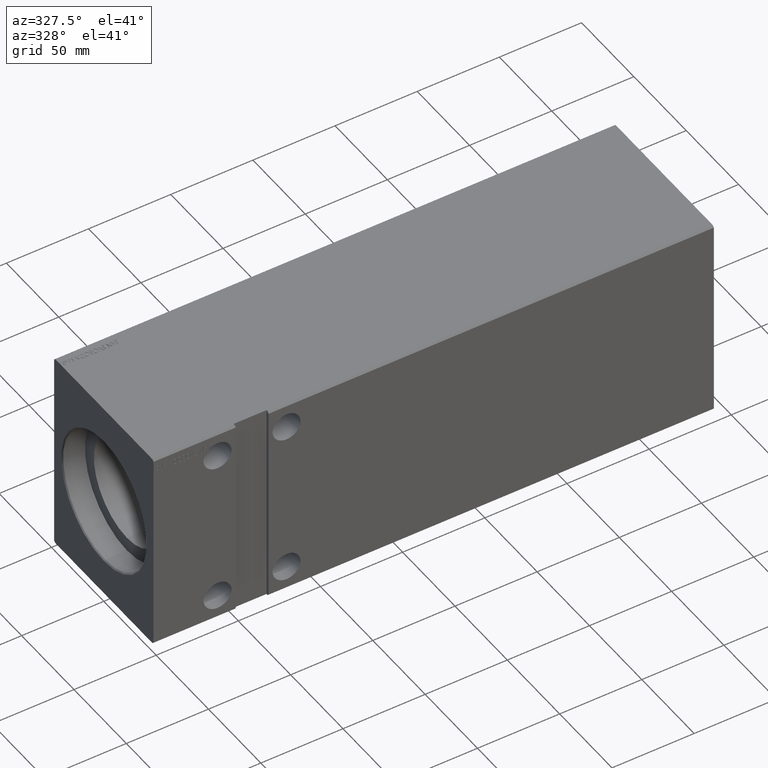
[diagram: clean part render]
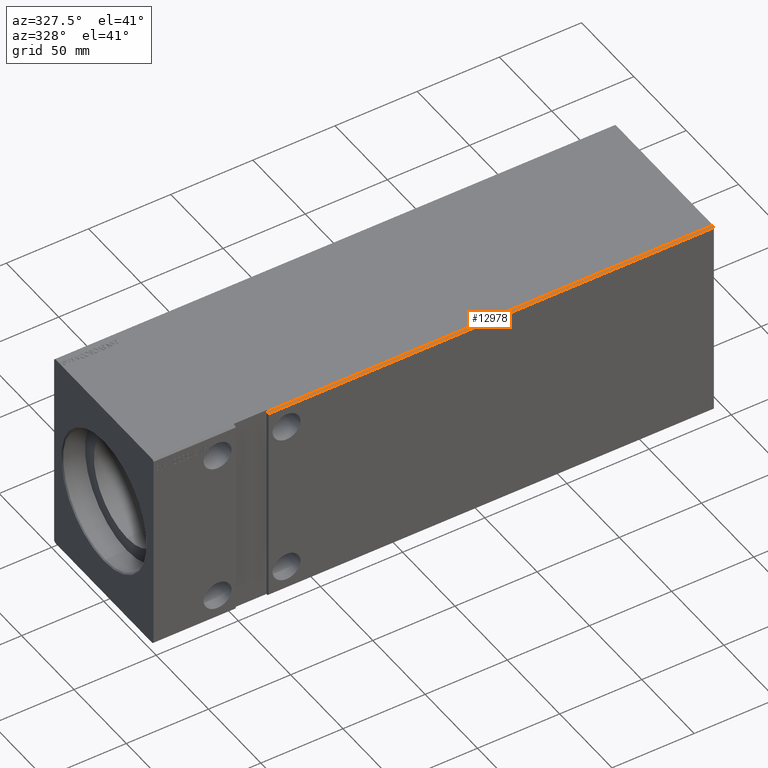
[diagram: same view with one face highlighted and labeled with its STEP entity id]
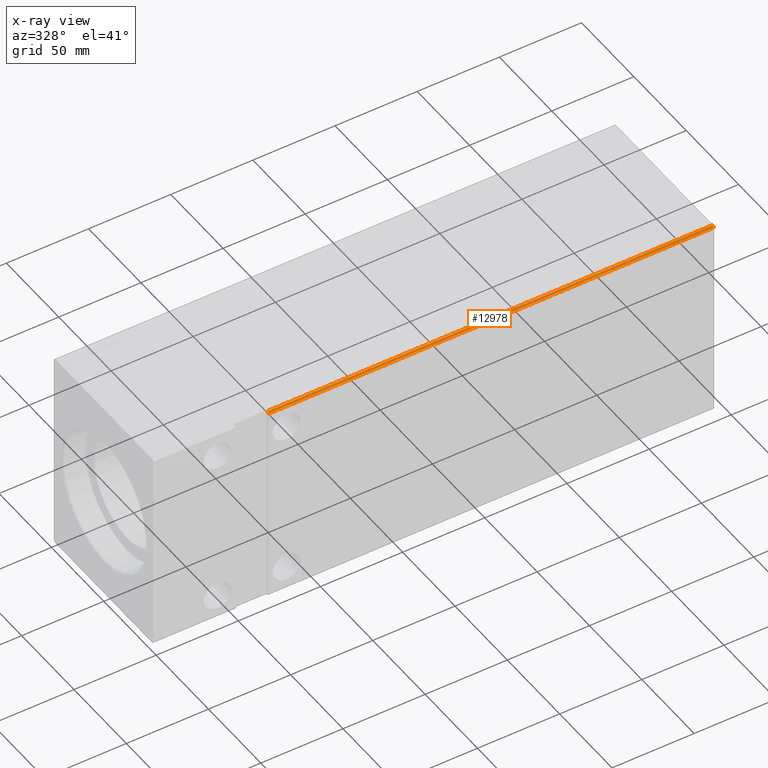
[diagram: x-ray of the same camera — body ghosted, the highlighted face saturated]
A machine part, auxiliary view. The second image highlights one B-rep face of the part: STEP entity #12978.
The next image is the same camera in x-ray: the body ghosted, the highlighted face saturated — about 0% of this face is hidden behind the body in this view.
In plain terms, the highlighted planar face has unit normal (0, 0.7071, -0.7071).
Its self-contained STEP definition (entity closure, byte-faithful):
#613 = VERTEX_POINT ( 'NONE', #9086 ) ;
#853 = CARTESIAN_POINT ( 'NONE',  ( 341.0000000000000000, -46.50000000000001421, 62.49999999999997868 ) ) ;
#1970 = DIRECTION ( 'NONE',  ( -1.000000000000000000, -0.000000000000000000, -0.000000000000000000 ) ) ;
#2274 = CARTESIAN_POINT ( 'NONE',  ( 341.0000000000000000, -46.50000000000001421, 62.49999999999997868 ) ) ;
#2486 = LINE ( 'NONE', #2274, #31617 ) ;
#3258 = VERTEX_POINT ( 'NONE', #21459 ) ;
#4742 = ORIENTED_EDGE ( 'NONE', *, *, #16785, .F. ) ;
#5160 = DIRECTION ( 'NONE',  ( 1.570092458683774920E-16, -0.7071067811865474617, -0.7071067811865474617 ) ) ;
#5746 = VERTEX_POINT ( 'NONE', #853 ) ;
#7849 = DIRECTION ( 'NONE',  ( 0.000000000000000000, 0.7071067811865475727, -0.7071067811865475727 ) ) ;
#9086 = CARTESIAN_POINT ( 'NONE',  ( 70.00000000000000000, -46.50000000000001421, 62.49999999999997868 ) ) ;
#10553 = VERTEX_POINT ( 'NONE', #37784 ) ;
#11047 = FACE_OUTER_BOUND ( 'NONE', #41617, .T. ) ;
#11096 = DIRECTION ( 'NONE',  ( 0.000000000000000000, -0.7071067811865474617, -0.7071067811865474617 ) ) ;
#12978 = ADVANCED_FACE ( 'NONE', ( #11047 ), #37068, .F. ) ;
#15294 = ORIENTED_EDGE ( 'NONE', *, *, #31391, .F. ) ;
#16785 = EDGE_CURVE ( 'NONE', #10553, #3258, #30769, .T. ) ;
#16863 = CARTESIAN_POINT ( 'NONE',  ( 341.0000000000000000, -46.50000000000001421, 62.49999999999997868 ) ) ;
#17319 = LINE ( 'NONE', #20955, #19344 ) ;
#18572 = AXIS2_PLACEMENT_3D ( 'NONE', #18658, #7849, #20872 ) ;
#18658 = CARTESIAN_POINT ( 'NONE',  ( 341.0000000000000000, -46.50000000000001421, 62.49999999999997868 ) ) ;
#19344 = VECTOR ( 'NONE', #5160, 1000.000000000000114 ) ;
#20872 = DIRECTION ( 'NONE',  ( 0.000000000000000000, 0.7071067811865474617, 0.7071067811865474617 ) ) ;
#20955 = CARTESIAN_POINT ( 'NONE',  ( 70.00000000000000000, -46.50000000000004263, 62.49999999999995026 ) ) ;
#21459 = CARTESIAN_POINT ( 'NONE',  ( 70.00000000000000000, -47.50000000000000000, 61.49999999999999289 ) ) ;
#22302 = DIRECTION ( 'NONE',  ( -1.000000000000000000, -0.000000000000000000, -0.000000000000000000 ) ) ;
#26282 = EDGE_CURVE ( 'NONE', #5746, #613, #2486, .T. ) ;
#28186 = CARTESIAN_POINT ( 'NONE',  ( 341.0000000000000000, -47.50000000000001421, 61.49999999999997868 ) ) ;
#30417 = VECTOR ( 'NONE', #11096, 1000.000000000000114 ) ;
#30769 = LINE ( 'NONE', #28186, #35700 ) ;
#31391 = EDGE_CURVE ( 'NONE', #5746, #10553, #36270, .T. ) ;
#31617 = VECTOR ( 'NONE', #22302, 1000.000000000000000 ) ;
#35675 = ORIENTED_EDGE ( 'NONE', *, *, #38565, .T. ) ;
#35700 = VECTOR ( 'NONE', #1970, 1000.000000000000000 ) ;
#36270 = LINE ( 'NONE', #16863, #30417 ) ;
#37068 = PLANE ( 'NONE',  #18572 ) ;
#37784 = CARTESIAN_POINT ( 'NONE',  ( 341.0000000000000000, -47.50000000000001421, 61.49999999999997868 ) ) ;
#38416 = ORIENTED_EDGE ( 'NONE', *, *, #26282, .T. ) ;
#38565 = EDGE_CURVE ( 'NONE', #613, #3258, #17319, .T. ) ;
#41617 = EDGE_LOOP ( 'NONE', ( #38416, #35675, #4742, #15294 ) ) ;